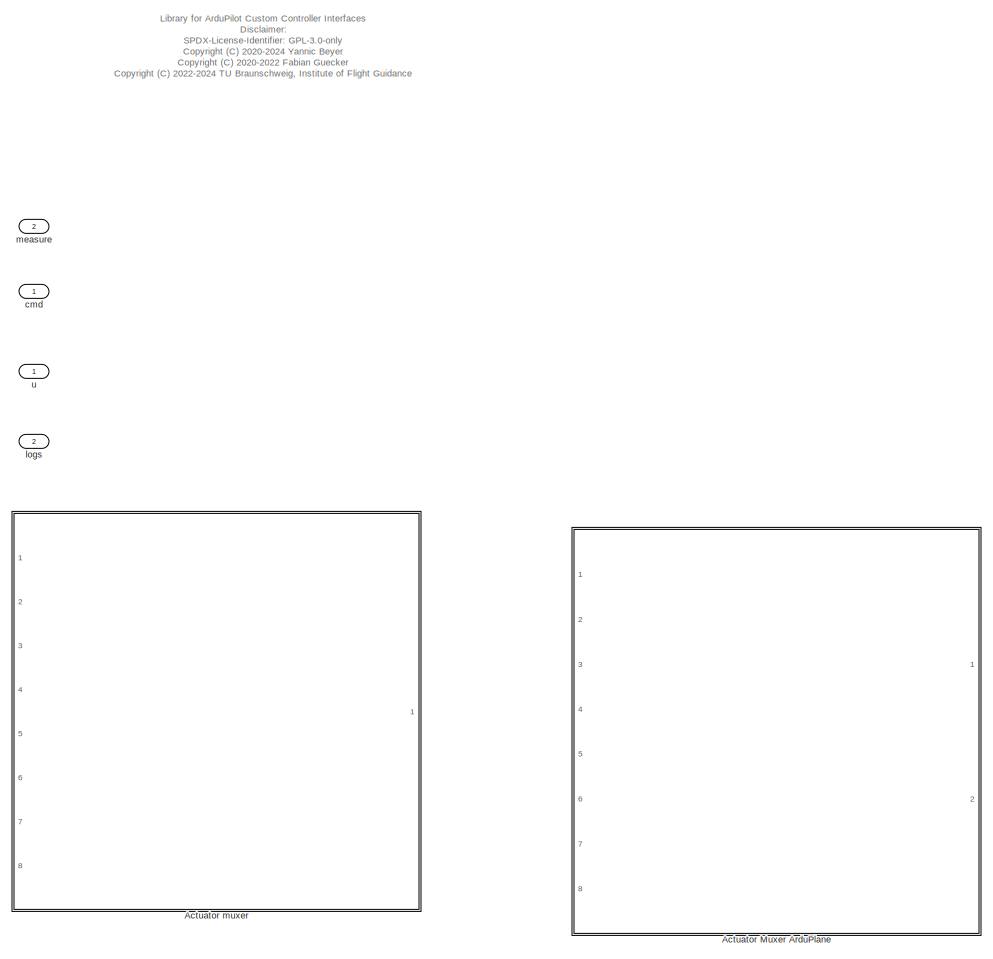
[diagram: root canvas - part 1/2, most of the canvas]
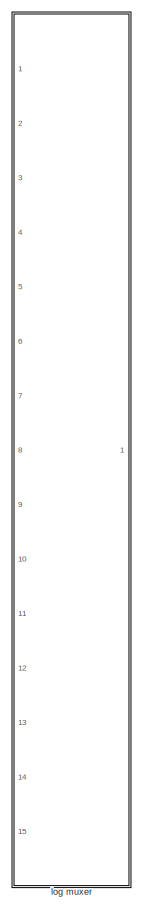
[diagram: root canvas - part 2/2, left side, full height]
MODEL slx_bbc4fb9a1307
KIND library
CONFIG AbsTol = auto
CONFIG EnableMultiTasking = off
CONFIG FixedStep = auto
CONFIG MaxStep = auto
CONFIG MinStep = auto
CONFIG RelTol = 1e-3
CONFIG SampleTimeConstraint = Unconstrained
CONFIG Solver = VariableStepAuto
CONFIG SolverName = VariableStepAuto
CONFIG StartTime = 0.0
CONFIG StopTime = 10.0
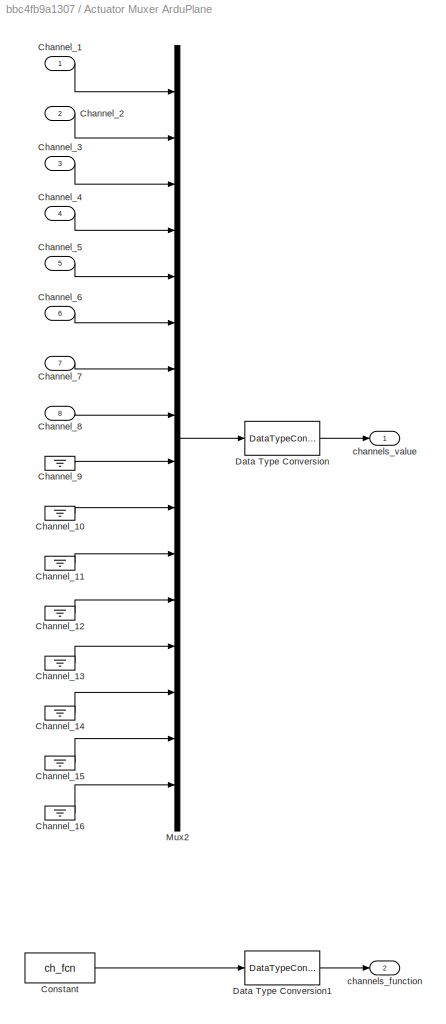
BLOCK [SubSystem] Actuator Muxer ArduPlane
  Ports = [8, 2]
  RequestExecContextInheritance = off
BLOCK [Inport] Actuator Muxer ArduPlane/Channel_1
  IconDisplay = Port number
BLOCK [Ground] Actuator Muxer ArduPlane/Channel_10
BLOCK [Ground] Actuator Muxer ArduPlane/Channel_11
BLOCK [Ground] Actuator Muxer ArduPlane/Channel_12
BLOCK [Ground] Actuator Muxer ArduPlane/Channel_13
BLOCK [Ground] Actuator Muxer ArduPlane/Channel_14
BLOCK [Ground] Actuator Muxer ArduPlane/Channel_15
BLOCK [Ground] Actuator Muxer ArduPlane/Channel_16
BLOCK [Inport] Actuator Muxer ArduPlane/Channel_2
  IconDisplay = Port number
  Port = 2
BLOCK [Inport] Actuator Muxer ArduPlane/Channel_3
  IconDisplay = Port number
  Port = 3
BLOCK [Inport] Actuator Muxer ArduPlane/Channel_4
  IconDisplay = Port number
  Port = 4
BLOCK [Inport] Actuator Muxer ArduPlane/Channel_5
  IconDisplay = Port number
  Port = 5
BLOCK [Inport] Actuator Muxer ArduPlane/Channel_6
  IconDisplay = Port number
  Port = 6
BLOCK [Inport] Actuator Muxer ArduPlane/Channel_7
  IconDisplay = Port number
  Port = 7
BLOCK [Inport] Actuator Muxer ArduPlane/Channel_8
  IconDisplay = Port number
  Port = 8
BLOCK [Ground] Actuator Muxer ArduPlane/Channel_9
BLOCK [Constant] Actuator Muxer ArduPlane/Constant
  Value = ch_fcn
BLOCK [DataTypeConversion] Actuator Muxer ArduPlane/Data Type Conversion
  OutDataTypeStr = single
  RndMeth = Floor
  SaturateOnIntegerOverflow = off
BLOCK [DataTypeConversion] Actuator Muxer ArduPlane/Data Type Conversion1
  OutDataTypeStr = uint16
  RndMeth = Floor
  SaturateOnIntegerOverflow = off
BLOCK [Mux] Actuator Muxer ArduPlane/Mux2
  DisplayOption = bar
  Inputs = 16
  Ports = [16, 1]
BLOCK [Outport] Actuator Muxer ArduPlane/channels_function
  IconDisplay = Port number
  OutDataTypeStr = uint16
  Port = 2
BLOCK [Outport] Actuator Muxer ArduPlane/channels_value
  IconDisplay = Port number
  OutDataTypeStr = single
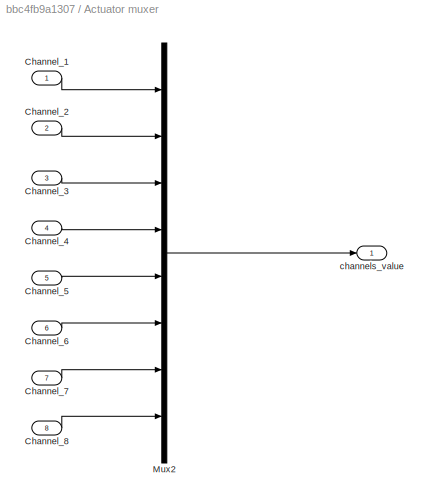
BLOCK [SubSystem] Actuator muxer
  Ports = [8, 1]
  RequestExecContextInheritance = off
BLOCK [Inport] Actuator muxer/Channel_1
  IconDisplay = Port number
BLOCK [Inport] Actuator muxer/Channel_2
  IconDisplay = Port number
  Port = 2
BLOCK [Inport] Actuator muxer/Channel_3
  IconDisplay = Port number
  Port = 3
BLOCK [Inport] Actuator muxer/Channel_4
  IconDisplay = Port number
  Port = 4
BLOCK [Inport] Actuator muxer/Channel_5
  IconDisplay = Port number
  Port = 5
BLOCK [Inport] Actuator muxer/Channel_6
  IconDisplay = Port number
  Port = 6
BLOCK [Inport] Actuator muxer/Channel_7
  IconDisplay = Port number
  Port = 7
BLOCK [Inport] Actuator muxer/Channel_8
  IconDisplay = Port number
  Port = 8
BLOCK [Mux] Actuator muxer/Mux2
  DisplayOption = bar
  Inputs = 8
  Ports = [8, 1]
BLOCK [Outport] Actuator muxer/channels_value
  IconDisplay = Port number
BLOCK [Inport] cmd
  IconDisplay = Port number
  OutDataTypeStr = Bus: cmdBus
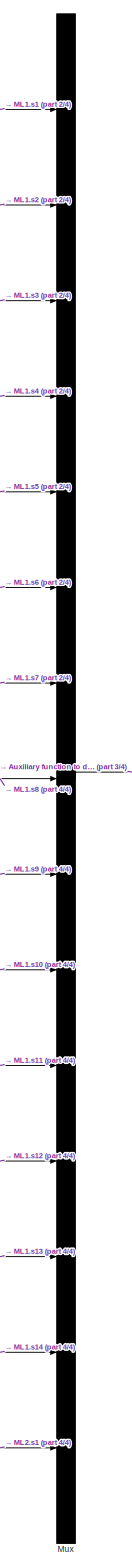
[diagram: log muxer - part 1/4, left side, full height]
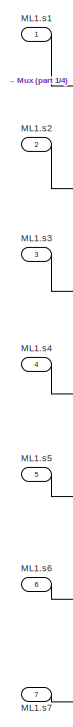
[diagram: log muxer - part 2/4, top left region]
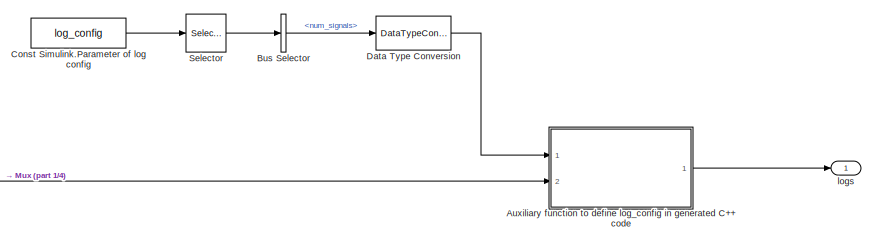
[diagram: log muxer - part 3/4, central region]
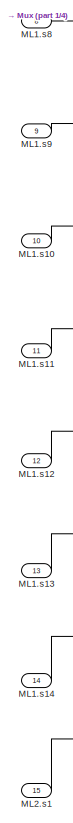
[diagram: log muxer - part 4/4, bottom left region]
BLOCK [SubSystem] log muxer
  Ports = [15, 1]
  RequestExecContextInheritance = off
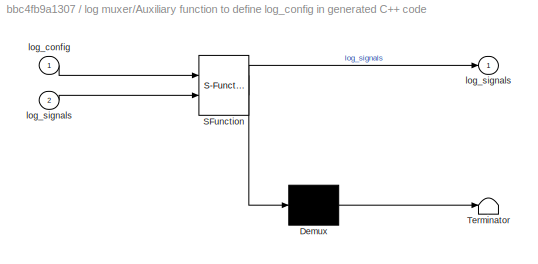
BLOCK [SubSystem] log muxer/Auxiliary function to define log_config in generated C++ code
  ErrorFcn = Stateflow.Translate.translate
  PermitHierarchicalResolution = ExplicitOnly
  Ports = [2, 1]
  RequestExecContextInheritance = off
  SFBlockType = MATLAB Function
  TreatAsAtomicUnit = on
BLOCK [Demux] log muxer/Auxiliary function to define log_config in generated C++ code/ Demux 
  Outputs = 1
  Ports = [1, 1]
BLOCK [S-Function] log muxer/Auxiliary function to define log_config in generated C++ code/ SFunction 
  EnableBusSupport = off
  FunctionName = sf_sfun
  PortCounts = [2 2]
  Ports = [2, 2]
  SFcnIsStateOwnerBlock = off
  SFunctionDeploymentMode = off
  Tag = Stateflow S-Function ardupilot_custom_controller_lib 2
BLOCK [Terminator] log muxer/Auxiliary function to define log_config in generated C++ code/ Terminator 
BLOCK [Inport] log muxer/Auxiliary function to define log_config in generated C++ code/log_config
  IconDisplay = Port number
BLOCK [Outport] log muxer/Auxiliary function to define log_config in generated C++ code/log_signals
  IconDisplay = Port number
BLOCK [Inport] log muxer/Auxiliary function to define log_config in generated C++ code/log_signals 
  IconDisplay = Port number
  Port = 2
BLOCK [BusSelector] log muxer/Bus Selector
  OutputAsBus = off
  OutputSignals = num_signals
  Ports = [1, 1]
BLOCK [Constant] log muxer/Const Simulink.Parameter of log config
  OutDataTypeStr = Bus: logConfigBus
  Value = log_config
BLOCK [DataTypeConversion] log muxer/Data Type Conversion
  RndMeth = Floor
  SaturateOnIntegerOverflow = off
BLOCK [Inport] log muxer/ML1.s1
  IconDisplay = Port number
BLOCK [Inport] log muxer/ML1.s10
  IconDisplay = Port number
  Port = 10
BLOCK [Inport] log muxer/ML1.s11
  IconDisplay = Port number
  Port = 11
BLOCK [Inport] log muxer/ML1.s12
  IconDisplay = Port number
  Port = 12
BLOCK [Inport] log muxer/ML1.s13
  IconDisplay = Port number
  Port = 13
BLOCK [Inport] log muxer/ML1.s14
  IconDisplay = Port number
  Port = 14
BLOCK [Inport] log muxer/ML1.s2
  IconDisplay = Port number
  Port = 2
BLOCK [Inport] log muxer/ML1.s3
  IconDisplay = Port number
  Port = 3
BLOCK [Inport] log muxer/ML1.s4
  IconDisplay = Port number
  Port = 4
BLOCK [Inport] log muxer/ML1.s5
  IconDisplay = Port number
  Port = 5
BLOCK [Inport] log muxer/ML1.s6
  IconDisplay = Port number
  Port = 6
BLOCK [Inport] log muxer/ML1.s7
  IconDisplay = Port number
  Port = 7
BLOCK [Inport] log muxer/ML1.s8
  IconDisplay = Port number
  Port = 8
BLOCK [Inport] log muxer/ML1.s9
  IconDisplay = Port number
  Port = 9
BLOCK [Inport] log muxer/ML2.s1
  IconDisplay = Port number
  Port = 15
BLOCK [Mux] log muxer/Mux
  DisplayOption = bar
  Inputs = 15
  Ports = [15, 1]
BLOCK [Selector] log muxer/Selector
  IndexOptions = Index vector (dialog)
  Indices = 1
  InputPortWidth = length(batch_name_in)
  OutputSizes = 1
  Ports = [1, 1]
BLOCK [Outport] log muxer/logs
  IconDisplay = Port number
BLOCK [Outport] logs
  IconDisplay = Port number
  Port = 2
BLOCK [Inport] measure
  IconDisplay = Port number
  OutDataTypeStr = Bus: measureBus
  Port = 2
BLOCK [Outport] u
  IconDisplay = Port number
ANNOTATION (root): Library for ArduPilot Custom Controller Interfaces Disclaimer: SPDX-License-Identifier: GPL-3.0-only <copyright redacted>
LINE Actuator muxer/Channel_1:1 -> Actuator muxer/Mux2:1
LINE Actuator muxer/Channel_2:1 -> Actuator muxer/Mux2:2
LINE Actuator muxer/Channel_3:1 -> Actuator muxer/Mux2:3
LINE Actuator muxer/Channel_4:1 -> Actuator muxer/Mux2:4
LINE Actuator muxer/Channel_5:1 -> Actuator muxer/Mux2:5
LINE Actuator muxer/Channel_6:1 -> Actuator muxer/Mux2:6
LINE Actuator muxer/Channel_7:1 -> Actuator muxer/Mux2:7
LINE Actuator muxer/Channel_8:1 -> Actuator muxer/Mux2:8
LINE Actuator muxer/Mux2:1 -> Actuator muxer/channels_value:1
CHART log muxer/Auxiliary function to define log_config
in generated C++ code states=1 transitions=1
  STATE_LABEL 'eML_blk_kernel()'
  STATE_LABEL 'SCRIPT:\nfunction log_signals = fcn(log_config, log_signals)\nend'
